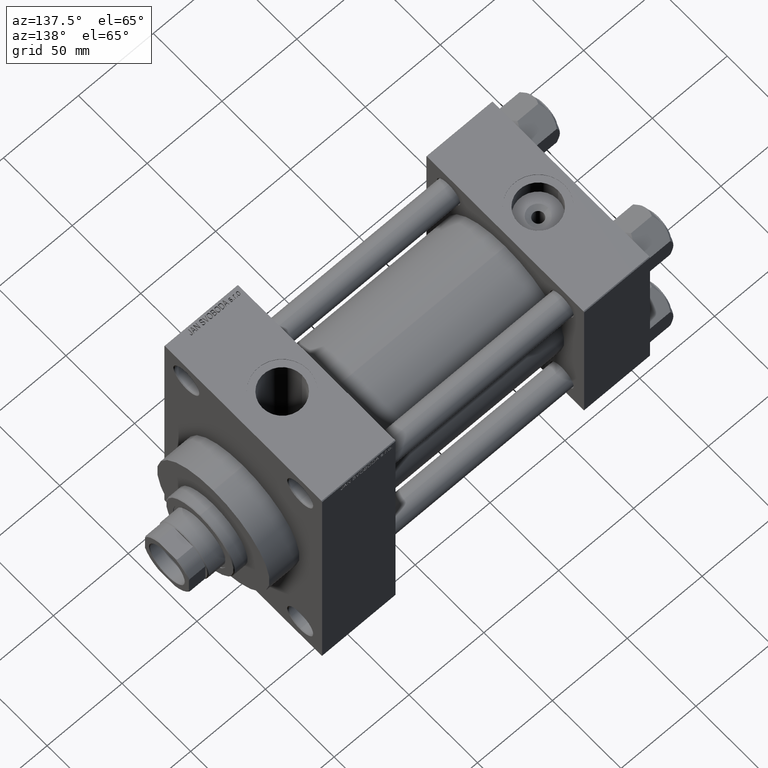
[diagram: clean part render]
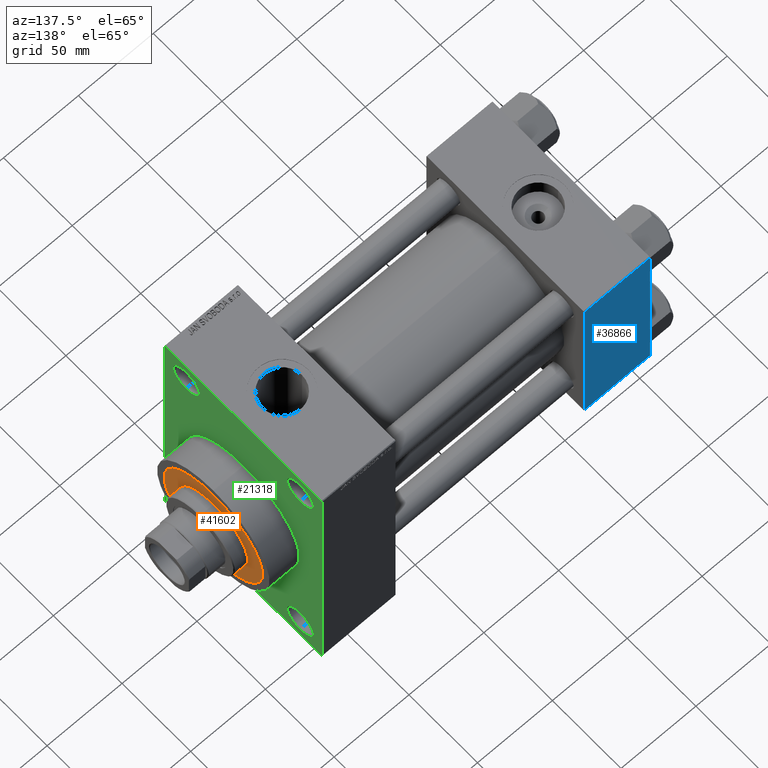
[diagram: same view with three faces highlighted in distinct colors, each labeled with its STEP entity id]
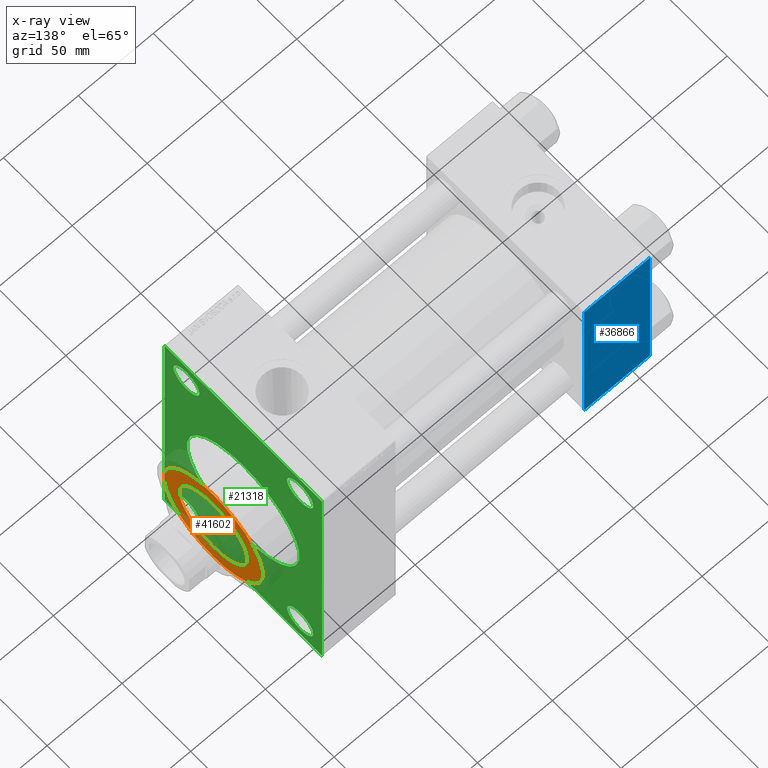
[diagram: x-ray of the same camera — body ghosted, the three highlighted faces saturated]
A machine part, auxiliary view with three faces highlighted in distinct colors.
The next image is the same camera in x-ray (body ghosted, the three faces saturated) — at least one of them is partly hidden behind the body in this view.
Their STEP definitions:

[orange] entity #41602 — the highlighted planar face has unit normal (1, 0, 0).
#2353 = ORIENTED_EDGE ( 'NONE', *, *, #15170, .F. ) ;
#2531 = EDGE_CURVE ( 'NONE', #45963, #15745, #23842, .T. ) ;
#3283 = EDGE_CURVE ( 'NONE', #32442, #16892, #9962, .T. ) ;
#3532 = DIRECTION ( 'NONE',  ( 0.000000000000000000, 0.000000000000000000, 1.000000000000000000 ) ) ;
#3987 = EDGE_CURVE ( 'NONE', #15745, #45963, #41555, .T. ) ;
#6889 = CARTESIAN_POINT ( 'NONE',  ( 25.00000000000000000, 3.061616997868383043E-15, 43.25999999999999801 ) ) ;
#8574 = DIRECTION ( 'NONE',  ( 0.000000000000000000, 0.000000000000000000, 1.000000000000000000 ) ) ;
#9863 = FACE_OUTER_BOUND ( 'NONE', #30004, .T. ) ;
#9962 = CIRCLE ( 'NONE', #22292, 25.00000000000000000 ) ;
#12201 = CARTESIAN_POINT ( 'NONE',  ( 0.000000000000000000, 0.000000000000000000, 43.25999999999999801 ) ) ;
#13055 = AXIS2_PLACEMENT_3D ( 'NONE', #12201, #8574, #22819 ) ;
#13710 = DIRECTION ( 'NONE',  ( 0.000000000000000000, 0.000000000000000000, 1.000000000000000000 ) ) ;
#15170 = EDGE_CURVE ( 'NONE', #16892, #32442, #32610, .T. ) ;
#15206 = CARTESIAN_POINT ( 'NONE',  ( 0.000000000000000000, 0.000000000000000000, 43.25999999999999801 ) ) ;
#15745 = VERTEX_POINT ( 'NONE', #31788 ) ;
#15887 = EDGE_LOOP ( 'NONE', ( #40795, #2353 ) ) ;
#16892 = VERTEX_POINT ( 'NONE', #6889 ) ;
#17100 = DIRECTION ( 'NONE',  ( 1.000000000000000000, 0.000000000000000000, -0.000000000000000000 ) ) ;
#18411 = ORIENTED_EDGE ( 'NONE', *, *, #2531, .T. ) ;
#19345 = CARTESIAN_POINT ( 'NONE',  ( -25.00000000000000000, 0.000000000000000000, 43.25999999999999801 ) ) ;
#20293 = AXIS2_PLACEMENT_3D ( 'NONE', #22475, #25136, #40329 ) ;
#20671 = AXIS2_PLACEMENT_3D ( 'NONE', #32049, #13710, #17100 ) ;
#22271 = CARTESIAN_POINT ( 'NONE',  ( 36.00000000000000000, 4.408728476930470856E-15, 43.25999999999999801 ) ) ;
#22292 = AXIS2_PLACEMENT_3D ( 'NONE', #15206, #26057, #44848 ) ;
#22475 = CARTESIAN_POINT ( 'NONE',  ( 0.000000000000000000, 0.000000000000000000, 43.25999999999999801 ) ) ;
#22819 = DIRECTION ( 'NONE',  ( 1.000000000000000000, 0.000000000000000000, 0.000000000000000000 ) ) ;
#23047 = AXIS2_PLACEMENT_3D ( 'NONE', #43307, #3532, #24739 ) ;
#23842 = CIRCLE ( 'NONE', #23047, 36.00000000000000000 ) ;
#24571 = PLANE ( 'NONE',  #20671 ) ;
#24739 = DIRECTION ( 'NONE',  ( 1.000000000000000000, 0.000000000000000000, 0.000000000000000000 ) ) ;
#25133 = ORIENTED_EDGE ( 'NONE', *, *, #3987, .T. ) ;
#25136 = DIRECTION ( 'NONE',  ( 0.000000000000000000, 0.000000000000000000, 1.000000000000000000 ) ) ;
#26057 = DIRECTION ( 'NONE',  ( 0.000000000000000000, 0.000000000000000000, 1.000000000000000000 ) ) ;
#30004 = EDGE_LOOP ( 'NONE', ( #25133, #18411 ) ) ;
#31788 = CARTESIAN_POINT ( 'NONE',  ( -36.00000000000000000, 0.000000000000000000, 43.25999999999999801 ) ) ;
#32049 = CARTESIAN_POINT ( 'NONE',  ( 0.000000000000000000, 0.000000000000000000, 43.25999999999999801 ) ) ;
#32442 = VERTEX_POINT ( 'NONE', #19345 ) ;
#32524 = FACE_BOUND ( 'NONE', #15887, .T. ) ;
#32610 = CIRCLE ( 'NONE', #20293, 25.00000000000000000 ) ;
#40329 = DIRECTION ( 'NONE',  ( 1.000000000000000000, 0.000000000000000000, 0.000000000000000000 ) ) ;
#40795 = ORIENTED_EDGE ( 'NONE', *, *, #3283, .F. ) ;
#41555 = CIRCLE ( 'NONE', #13055, 36.00000000000000000 ) ;
#41602 = ADVANCED_FACE ( 'NONE', ( #32524, #9863 ), #24571, .T. ) ;
#43307 = CARTESIAN_POINT ( 'NONE',  ( 0.000000000000000000, 0.000000000000000000, 43.25999999999999801 ) ) ;
#44848 = DIRECTION ( 'NONE',  ( 1.000000000000000000, 0.000000000000000000, 0.000000000000000000 ) ) ;
#45963 = VERTEX_POINT ( 'NONE', #22271 ) ;

[blue] entity #36866 — the highlighted planar face has unit normal (0, 1, 0).
#86 = CARTESIAN_POINT ( 'NONE',  ( 44.00000000000000000, 57.50000000000000000, -56.99999999999997158 ) ) ;
#4668 = VECTOR ( 'NONE', #9129, 1000.000000000000000 ) ;
#5835 = EDGE_CURVE ( 'NONE', #6998, #37429, #26979, .T. ) ;
#6042 = ORIENTED_EDGE ( 'NONE', *, *, #5835, .T. ) ;
#6228 = DIRECTION ( 'NONE',  ( -0.000000000000000000, 1.000000000000000000, 0.000000000000000000 ) ) ;
#6713 = CARTESIAN_POINT ( 'NONE',  ( 44.00000000000000000, 57.50000000000000000, 57.50000000000001421 ) ) ;
#6998 = VERTEX_POINT ( 'NONE', #27662 ) ;
#7899 = VECTOR ( 'NONE', #27582, 1000.000000000000000 ) ;
#9129 = DIRECTION ( 'NONE',  ( 0.000000000000000000, 0.000000000000000000, -1.000000000000000000 ) ) ;
#9849 = FACE_OUTER_BOUND ( 'NONE', #21752, .T. ) ;
#10070 = EDGE_CURVE ( 'NONE', #37429, #21943, #37964, .T. ) ;
#10624 = AXIS2_PLACEMENT_3D ( 'NONE', #6713, #6228, #47214 ) ;
#12748 = CARTESIAN_POINT ( 'NONE',  ( 44.00000000000000000, 57.50000000000000000, 57.50000000000001421 ) ) ;
#13984 = DIRECTION ( 'NONE',  ( 1.000000000000000000, 0.000000000000000000, 0.000000000000000000 ) ) ;
#15578 = VERTEX_POINT ( 'NONE', #25559 ) ;
#16988 = DIRECTION ( 'NONE',  ( 0.000000000000000000, 0.000000000000000000, -1.000000000000000000 ) ) ;
#17058 = CARTESIAN_POINT ( 'NONE',  ( 0.000000000000000000, 57.50000000000000000, -56.99999999999997158 ) ) ;
#20139 = CARTESIAN_POINT ( 'NONE',  ( 0.000000000000000000, 57.50000000000000000, 57.50000000000001421 ) ) ;
#21752 = EDGE_LOOP ( 'NONE', ( #6042, #39834, #26439, #32611 ) ) ;
#21943 = VERTEX_POINT ( 'NONE', #17058 ) ;
#25559 = CARTESIAN_POINT ( 'NONE',  ( 0.000000000000000000, 57.50000000000000000, 57.00000000000004263 ) ) ;
#26439 = ORIENTED_EDGE ( 'NONE', *, *, #44966, .F. ) ;
#26652 = EDGE_CURVE ( 'NONE', #15578, #6998, #39789, .T. ) ;
#26979 = LINE ( 'NONE', #12748, #4668 ) ;
#27582 = DIRECTION ( 'NONE',  ( -1.000000000000000000, 0.000000000000000000, 0.000000000000000000 ) ) ;
#27662 = CARTESIAN_POINT ( 'NONE',  ( 44.00000000000000000, 57.50000000000000000, 57.00000000000004263 ) ) ;
#30750 = LINE ( 'NONE', #20139, #40099 ) ;
#31433 = CARTESIAN_POINT ( 'NONE',  ( 44.00000000000000000, 57.50000000000000000, -57.00000000000000000 ) ) ;
#32611 = ORIENTED_EDGE ( 'NONE', *, *, #26652, .T. ) ;
#36866 = ADVANCED_FACE ( 'NONE', ( #9849 ), #39747, .T. ) ;
#37247 = VECTOR ( 'NONE', #13984, 1000.000000000000000 ) ;
#37429 = VERTEX_POINT ( 'NONE', #86 ) ;
#37964 = LINE ( 'NONE', #31433, #7899 ) ;
#39747 = PLANE ( 'NONE',  #10624 ) ;
#39789 = LINE ( 'NONE', #47014, #37247 ) ;
#39834 = ORIENTED_EDGE ( 'NONE', *, *, #10070, .T. ) ;
#40099 = VECTOR ( 'NONE', #16988, 1000.000000000000000 ) ;
#44966 = EDGE_CURVE ( 'NONE', #15578, #21943, #30750, .T. ) ;
#47014 = CARTESIAN_POINT ( 'NONE',  ( 44.00000000000000000, 57.50000000000000000, 57.00000000000004263 ) ) ;
#47214 = DIRECTION ( 'NONE',  ( 0.000000000000000000, -0.000000000000000000, 1.000000000000000000 ) ) ;

[green] entity #21318 — the highlighted planar face has unit normal (-1, 0, 0).
#405 = LINE ( 'NONE', #43337, #12453 ) ;
#648 = CIRCLE ( 'NONE', #17581, 9.499999999999896971 ) ;
#869 = EDGE_CURVE ( 'NONE', #15397, #3033, #11441, .T. ) ;
#881 = AXIS2_PLACEMENT_3D ( 'NONE', #4581, #19297, #23377 ) ;
#1649 = ORIENTED_EDGE ( 'NONE', *, *, #37287, .T. ) ;
#2182 = CIRCLE ( 'NONE', #13708, 9.499999999999896971 ) ;
#2336 = EDGE_CURVE ( 'NONE', #3033, #15397, #9199, .T. ) ;
#2678 = AXIS2_PLACEMENT_3D ( 'NONE', #15329, #11230, #18720 ) ;
#2851 = CIRCLE ( 'NONE', #6697, 9.499999999999980460 ) ;
#2946 = EDGE_LOOP ( 'NONE', ( #38970, #33383 ) ) ;
#3024 = ORIENTED_EDGE ( 'NONE', *, *, #41224, .F. ) ;
#3033 = VERTEX_POINT ( 'NONE', #35247 ) ;
#3039 = CARTESIAN_POINT ( 'NONE',  ( 218.9999999999999716, -57.50000000000000000, 89.49999999999994316 ) ) ;
#3079 = CARTESIAN_POINT ( 'NONE',  ( 218.9999999999999716, -56.99999999999997158, -90.00000000000000000 ) ) ;
#4581 = CARTESIAN_POINT ( 'NONE',  ( 218.9999999999999716, -41.50000000000000711, -74.49999999999998579 ) ) ;
#5015 = CARTESIAN_POINT ( 'NONE',  ( 218.9999999999999716, 57.50000000000000000, -90.00000000000000000 ) ) ;
#5725 = ORIENTED_EDGE ( 'NONE', *, *, #10875, .T. ) ;
#5798 = VERTEX_POINT ( 'NONE', #41457 ) ;
#5805 = CARTESIAN_POINT ( 'NONE',  ( 218.9999999999999716, -41.50000000000000711, -65.00000000000000000 ) ) ;
#6118 = DIRECTION ( 'NONE',  ( 0.000000000000000000, 0.000000000000000000, 1.000000000000000000 ) ) ;
#6532 = CIRCLE ( 'NONE', #2678, 41.00000000000000000 ) ;
#6697 = AXIS2_PLACEMENT_3D ( 'NONE', #47332, #40347, #7066 ) ;
#6813 = DIRECTION ( 'NONE',  ( 0.000000000000000000, 0.000000000000000000, -1.000000000000000000 ) ) ;
#7066 = DIRECTION ( 'NONE',  ( 0.000000000000000000, 0.000000000000000000, 1.000000000000000000 ) ) ;
#7684 = DIRECTION ( 'NONE',  ( 0.000000000000000000, 0.000000000000000000, 1.000000000000000000 ) ) ;
#7902 = CARTESIAN_POINT ( 'NONE',  ( 218.9999999999999716, 57.50000000000000000, 90.00000000000000000 ) ) ;
#8695 = ORIENTED_EDGE ( 'NONE', *, *, #47406, .T. ) ;
#9066 = VECTOR ( 'NONE', #23022, 1000.000000000000114 ) ;
#9132 = CIRCLE ( 'NONE', #41490, 9.499999999999980460 ) ;
#9199 = CIRCLE ( 'NONE', #18444, 9.499999999999896971 ) ;
#9440 = DIRECTION ( 'NONE',  ( 0.000000000000000000, 0.000000000000000000, 1.000000000000000000 ) ) ;
#9501 = CARTESIAN_POINT ( 'NONE',  ( 218.9999999999999716, 56.99999999999997158, 90.00000000000000000 ) ) ;
#9587 = AXIS2_PLACEMENT_3D ( 'NONE', #33956, #37108, #7684 ) ;
#9590 = ORIENTED_EDGE ( 'NONE', *, *, #38677, .T. ) ;
#9693 = PLANE ( 'NONE',  #15594 ) ;
#10310 = VERTEX_POINT ( 'NONE', #18642 ) ;
#10412 = FACE_BOUND ( 'NONE', #33311, .T. ) ;
#10875 = EDGE_CURVE ( 'NONE', #26546, #10310, #13181, .T. ) ;
#10936 = DIRECTION ( 'NONE',  ( -1.000000000000000000, -0.000000000000000000, -0.000000000000000000 ) ) ;
#11141 = CARTESIAN_POINT ( 'NONE',  ( 218.9999999999999716, 41.49999999999999289, -65.00000000000000000 ) ) ;
#11230 = DIRECTION ( 'NONE',  ( 1.000000000000000000, 0.000000000000000000, 0.000000000000000000 ) ) ;
#11274 = CARTESIAN_POINT ( 'NONE',  ( 218.9999999999999716, 0.000000000000000000, 0.000000000000000000 ) ) ;
#11441 = CIRCLE ( 'NONE', #13740, 9.499999999999896971 ) ;
#11548 = ORIENTED_EDGE ( 'NONE', *, *, #41777, .T. ) ;
#11753 = DIRECTION ( 'NONE',  ( 0.000000000000000000, 0.000000000000000000, -1.000000000000000000 ) ) ;
#11758 = DIRECTION ( 'NONE',  ( -1.000000000000000000, -0.000000000000000000, -0.000000000000000000 ) ) ;
#12002 = DIRECTION ( 'NONE',  ( -1.000000000000000000, -0.000000000000000000, -0.000000000000000000 ) ) ;
#12038 = VERTEX_POINT ( 'NONE', #31717 ) ;
#12453 = VECTOR ( 'NONE', #25010, 1000.000000000000114 ) ;
#12483 = VERTEX_POINT ( 'NONE', #47165 ) ;
#12622 = ORIENTED_EDGE ( 'NONE', *, *, #19106, .T. ) ;
#13181 = CIRCLE ( 'NONE', #881, 9.499999999999980460 ) ;
#13445 = EDGE_CURVE ( 'NONE', #5798, #22017, #26715, .T. ) ;
#13542 = FACE_BOUND ( 'NONE', #18818, .T. ) ;
#13583 = DIRECTION ( 'NONE',  ( -1.000000000000000000, -0.000000000000000000, -0.000000000000000000 ) ) ;
#13708 = AXIS2_PLACEMENT_3D ( 'NONE', #29273, #10936, #25649 ) ;
#13740 = AXIS2_PLACEMENT_3D ( 'NONE', #38689, #13583, #6118 ) ;
#14583 = ORIENTED_EDGE ( 'NONE', *, *, #33877, .T. ) ;
#14631 = ORIENTED_EDGE ( 'NONE', *, *, #13445, .F. ) ;
#15157 = VERTEX_POINT ( 'NONE', #11141 ) ;
#15329 = CARTESIAN_POINT ( 'NONE',  ( 218.9999999999999716, 0.000000000000000000, 0.000000000000000000 ) ) ;
#15379 = DIRECTION ( 'NONE',  ( 0.000000000000000000, 0.000000000000000000, 1.000000000000000000 ) ) ;
#15397 = VERTEX_POINT ( 'NONE', #44644 ) ;
#15594 = AXIS2_PLACEMENT_3D ( 'NONE', #35975, #21035, #16934 ) ;
#15788 = CARTESIAN_POINT ( 'NONE',  ( 218.9999999999999716, -57.50000000000000000, 89.49999999999994316 ) ) ;
#16131 = VERTEX_POINT ( 'NONE', #3039 ) ;
#16495 = VERTEX_POINT ( 'NONE', #22426 ) ;
#16934 = DIRECTION ( 'NONE',  ( -0.000000000000000000, 0.000000000000000000, 1.000000000000000000 ) ) ;
#17175 = CARTESIAN_POINT ( 'NONE',  ( 218.9999999999999716, -41.50000000000000711, 65.00000000000011369 ) ) ;
#17448 = VECTOR ( 'NONE', #44068, 1000.000000000000000 ) ;
#17555 = ORIENTED_EDGE ( 'NONE', *, *, #869, .T. ) ;
#17581 = AXIS2_PLACEMENT_3D ( 'NONE', #27416, #12002, #37809 ) ;
#18444 = AXIS2_PLACEMENT_3D ( 'NONE', #37334, #11758, #15379 ) ;
#18642 = CARTESIAN_POINT ( 'NONE',  ( 218.9999999999999716, -41.50000000000000711, -83.99999999999995737 ) ) ;
#18687 = EDGE_CURVE ( 'NONE', #37843, #22017, #27318, .T. ) ;
#18720 = DIRECTION ( 'NONE',  ( 0.000000000000000000, 0.000000000000000000, -1.000000000000000000 ) ) ;
#18818 = EDGE_LOOP ( 'NONE', ( #11548, #25246 ) ) ;
#19106 = EDGE_CURVE ( 'NONE', #37659, #37409, #405, .T. ) ;
#19297 = DIRECTION ( 'NONE',  ( -1.000000000000000000, -0.000000000000000000, -0.000000000000000000 ) ) ;
#19433 = VECTOR ( 'NONE', #34904, 1000.000000000000000 ) ;
#19440 = ORIENTED_EDGE ( 'NONE', *, *, #20365, .T. ) ;
#20365 = EDGE_CURVE ( 'NONE', #16131, #37843, #32615, .T. ) ;
#20644 = VERTEX_POINT ( 'NONE', #38134 ) ;
#21035 = DIRECTION ( 'NONE',  ( -1.000000000000000000, 0.000000000000000000, -0.000000000000000000 ) ) ;
#21061 = CARTESIAN_POINT ( 'NONE',  ( 218.9999999999999716, -57.50000000000000000, -89.49999999999991473 ) ) ;
#21318 = ADVANCED_FACE ( 'NONE', ( #13542, #10412, #28988, #32123, #39120, #42732 ), #9693, .F. ) ;
#22017 = VERTEX_POINT ( 'NONE', #3079 ) ;
#22376 = DIRECTION ( 'NONE',  ( 1.000000000000000000, 0.000000000000000000, 0.000000000000000000 ) ) ;
#22426 = CARTESIAN_POINT ( 'NONE',  ( 218.9999999999999716, -56.99999999999994316, 90.00000000000000000 ) ) ;
#23022 = DIRECTION ( 'NONE',  ( -0.000000000000000000, -0.7071067811865474617, -0.7071067811865474617 ) ) ;
#23377 = DIRECTION ( 'NONE',  ( 0.000000000000000000, 0.000000000000000000, 1.000000000000000000 ) ) ;
#24156 = CARTESIAN_POINT ( 'NONE',  ( 218.9999999999999716, 41.49999999999999289, -74.49999999999998579 ) ) ;
#24201 = CARTESIAN_POINT ( 'NONE',  ( 218.9999999999999716, 57.50000000000000000, 89.49999999999997158 ) ) ;
#24488 = AXIS2_PLACEMENT_3D ( 'NONE', #11274, #22376, #11753 ) ;
#24727 = ORIENTED_EDGE ( 'NONE', *, *, #36921, .F. ) ;
#25001 = VERTEX_POINT ( 'NONE', #17175 ) ;
#25010 = DIRECTION ( 'NONE',  ( 0.000000000000000000, -0.7071067811865474617, 0.7071067811865474617 ) ) ;
#25145 = CARTESIAN_POINT ( 'NONE',  ( 218.9999999999999716, 5.021051876504148963E-15, -41.00000000000000000 ) ) ;
#25246 = ORIENTED_EDGE ( 'NONE', *, *, #42287, .T. ) ;
#25649 = DIRECTION ( 'NONE',  ( 0.000000000000000000, 0.000000000000000000, 1.000000000000000000 ) ) ;
#26373 = ORIENTED_EDGE ( 'NONE', *, *, #18687, .T. ) ;
#26546 = VERTEX_POINT ( 'NONE', #5805 ) ;
#26597 = VECTOR ( 'NONE', #31824, 1000.000000000000114 ) ;
#26715 = LINE ( 'NONE', #5015, #19433 ) ;
#27318 = LINE ( 'NONE', #42032, #38659 ) ;
#27351 = LINE ( 'NONE', #15788, #9066 ) ;
#27416 = CARTESIAN_POINT ( 'NONE',  ( 218.9999999999999716, -41.50000000000000711, 74.50000000000001421 ) ) ;
#27622 = VERTEX_POINT ( 'NONE', #25145 ) ;
#28147 = EDGE_LOOP ( 'NONE', ( #35284, #24727 ) ) ;
#28457 = ORIENTED_EDGE ( 'NONE', *, *, #2336, .T. ) ;
#28494 = DIRECTION ( 'NONE',  ( 0.000000000000000000, 0.000000000000000000, -1.000000000000000000 ) ) ;
#28988 = FACE_BOUND ( 'NONE', #2946, .T. ) ;
#29273 = CARTESIAN_POINT ( 'NONE',  ( 218.9999999999999716, -41.50000000000000711, 74.50000000000001421 ) ) ;
#29571 = EDGE_CURVE ( 'NONE', #12483, #27622, #6532, .T. ) ;
#30213 = EDGE_CURVE ( 'NONE', #15157, #20644, #33485, .T. ) ;
#31717 = CARTESIAN_POINT ( 'NONE',  ( 218.9999999999999716, 57.50000000000000000, -89.49999999999988631 ) ) ;
#31824 = DIRECTION ( 'NONE',  ( -0.000000000000000000, 0.7071067811865474617, 0.7071067811865474617 ) ) ;
#32123 = FACE_BOUND ( 'NONE', #46937, .T. ) ;
#32615 = LINE ( 'NONE', #39848, #43299 ) ;
#32816 = CARTESIAN_POINT ( 'NONE',  ( 218.9999999999999716, 57.50000000000000000, 90.00000000000000000 ) ) ;
#33311 = EDGE_LOOP ( 'NONE', ( #9590, #5725 ) ) ;
#33383 = ORIENTED_EDGE ( 'NONE', *, *, #30213, .T. ) ;
#33485 = CIRCLE ( 'NONE', #9587, 9.499999999999980460 ) ;
#33877 = EDGE_CURVE ( 'NONE', #37409, #16495, #44307, .T. ) ;
#33956 = CARTESIAN_POINT ( 'NONE',  ( 218.9999999999999716, 41.49999999999999289, -74.49999999999998579 ) ) ;
#34483 = CIRCLE ( 'NONE', #24488, 41.00000000000000000 ) ;
#34904 = DIRECTION ( 'NONE',  ( 0.000000000000000000, -1.000000000000000000, 0.000000000000000000 ) ) ;
#35033 = DIRECTION ( 'NONE',  ( 0.000000000000000000, 0.7071067811865474617, -0.7071067811865474617 ) ) ;
#35245 = DIRECTION ( 'NONE',  ( -1.000000000000000000, -0.000000000000000000, -0.000000000000000000 ) ) ;
#35247 = CARTESIAN_POINT ( 'NONE',  ( 218.9999999999999716, 41.49999999999999289, 65.00000000000011369 ) ) ;
#35284 = ORIENTED_EDGE ( 'NONE', *, *, #29571, .F. ) ;
#35975 = CARTESIAN_POINT ( 'NONE',  ( 218.9999999999999716, 0.000000000000000000, 0.000000000000000000 ) ) ;
#36921 = EDGE_CURVE ( 'NONE', #27622, #12483, #34483, .T. ) ;
#37108 = DIRECTION ( 'NONE',  ( -1.000000000000000000, -0.000000000000000000, -0.000000000000000000 ) ) ;
#37287 = EDGE_CURVE ( 'NONE', #16495, #16131, #27351, .T. ) ;
#37334 = CARTESIAN_POINT ( 'NONE',  ( 218.9999999999999716, 41.49999999999999289, 74.50000000000001421 ) ) ;
#37409 = VERTEX_POINT ( 'NONE', #9501 ) ;
#37659 = VERTEX_POINT ( 'NONE', #24201 ) ;
#37809 = DIRECTION ( 'NONE',  ( 0.000000000000000000, 0.000000000000000000, 1.000000000000000000 ) ) ;
#37843 = VERTEX_POINT ( 'NONE', #21061 ) ;
#37940 = VERTEX_POINT ( 'NONE', #38320 ) ;
#38134 = CARTESIAN_POINT ( 'NONE',  ( 218.9999999999999716, 41.49999999999999289, -83.99999999999995737 ) ) ;
#38320 = CARTESIAN_POINT ( 'NONE',  ( 218.9999999999999716, -41.50000000000000711, 83.99999999999991473 ) ) ;
#38659 = VECTOR ( 'NONE', #35033, 1000.000000000000114 ) ;
#38677 = EDGE_CURVE ( 'NONE', #10310, #26546, #2851, .T. ) ;
#38689 = CARTESIAN_POINT ( 'NONE',  ( 218.9999999999999716, 41.49999999999999289, 74.50000000000001421 ) ) ;
#38970 = ORIENTED_EDGE ( 'NONE', *, *, #43267, .T. ) ;
#39120 = FACE_BOUND ( 'NONE', #28147, .T. ) ;
#39536 = CARTESIAN_POINT ( 'NONE',  ( 218.9999999999999716, 57.50000000000000000, -89.49999999999994316 ) ) ;
#39848 = CARTESIAN_POINT ( 'NONE',  ( 218.9999999999999716, -57.50000000000000000, 90.00000000000000000 ) ) ;
#40010 = LINE ( 'NONE', #39536, #26597 ) ;
#40347 = DIRECTION ( 'NONE',  ( -1.000000000000000000, -0.000000000000000000, -0.000000000000000000 ) ) ;
#41224 = EDGE_CURVE ( 'NONE', #37659, #12038, #43666, .T. ) ;
#41423 = VECTOR ( 'NONE', #28494, 1000.000000000000000 ) ;
#41457 = CARTESIAN_POINT ( 'NONE',  ( 218.9999999999999716, 56.99999999999994316, -90.00000000000000000 ) ) ;
#41490 = AXIS2_PLACEMENT_3D ( 'NONE', #24156, #35245, #9440 ) ;
#41777 = EDGE_CURVE ( 'NONE', #25001, #37940, #648, .T. ) ;
#42032 = CARTESIAN_POINT ( 'NONE',  ( 218.9999999999999716, -56.99999999999997158, -90.00000000000000000 ) ) ;
#42287 = EDGE_CURVE ( 'NONE', #37940, #25001, #2182, .T. ) ;
#42732 = FACE_OUTER_BOUND ( 'NONE', #44812, .T. ) ;
#43267 = EDGE_CURVE ( 'NONE', #20644, #15157, #9132, .T. ) ;
#43299 = VECTOR ( 'NONE', #6813, 1000.000000000000000 ) ;
#43337 = CARTESIAN_POINT ( 'NONE',  ( 218.9999999999999716, 56.99999999999997158, 90.00000000000000000 ) ) ;
#43666 = LINE ( 'NONE', #32816, #41423 ) ;
#44068 = DIRECTION ( 'NONE',  ( 0.000000000000000000, -1.000000000000000000, 0.000000000000000000 ) ) ;
#44307 = LINE ( 'NONE', #7902, #17448 ) ;
#44644 = CARTESIAN_POINT ( 'NONE',  ( 218.9999999999999716, 41.49999999999999289, 83.99999999999991473 ) ) ;
#44812 = EDGE_LOOP ( 'NONE', ( #19440, #26373, #14631, #8695, #3024, #12622, #14583, #1649 ) ) ;
#46937 = EDGE_LOOP ( 'NONE', ( #28457, #17555 ) ) ;
#47165 = CARTESIAN_POINT ( 'NONE',  ( 218.9999999999999716, 0.000000000000000000, 41.00000000000000000 ) ) ;
#47332 = CARTESIAN_POINT ( 'NONE',  ( 218.9999999999999716, -41.50000000000000711, -74.49999999999998579 ) ) ;
#47406 = EDGE_CURVE ( 'NONE', #5798, #12038, #40010, .T. ) ;